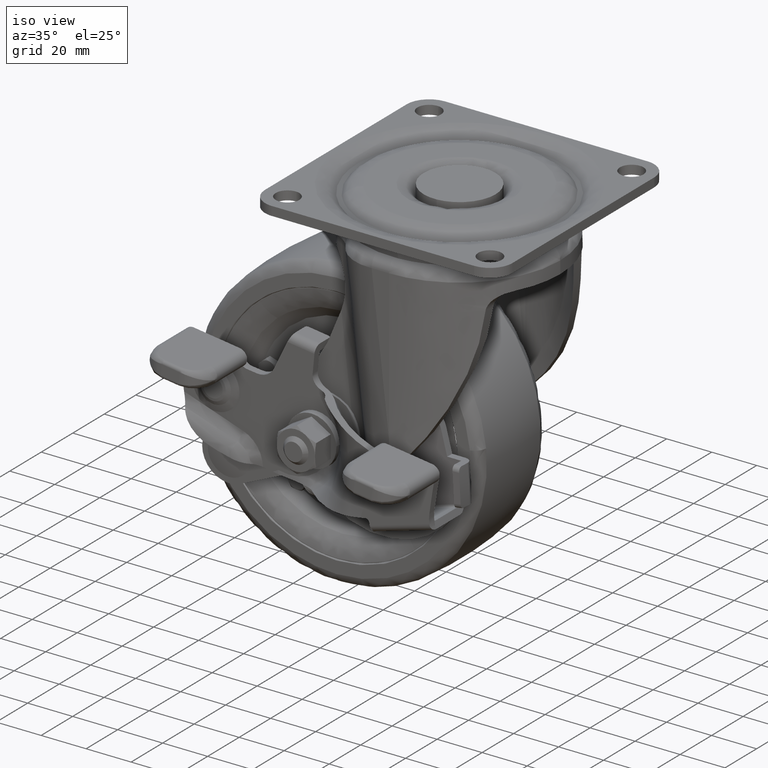
[diagram: clean part render]
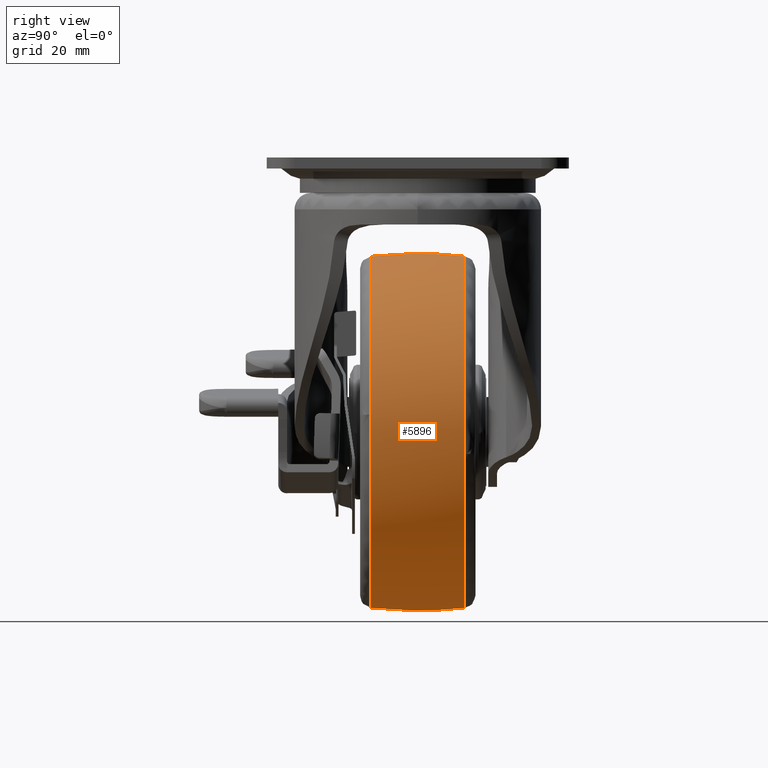
[diagram: tour spotlight — one face highlighted and labeled with its STEP entity id]
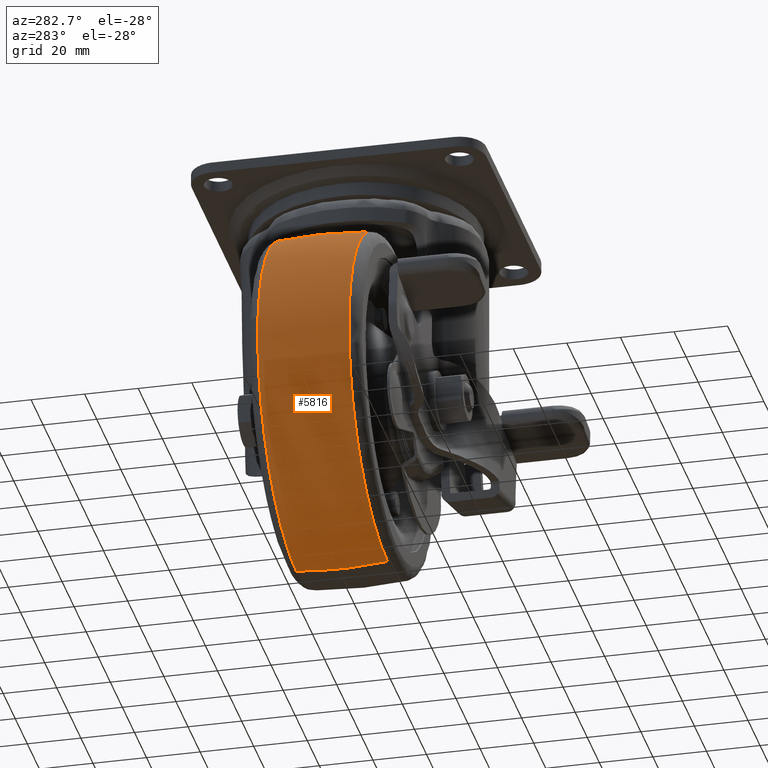
[diagram: tour spotlight — one face highlighted and labeled with its STEP entity id]
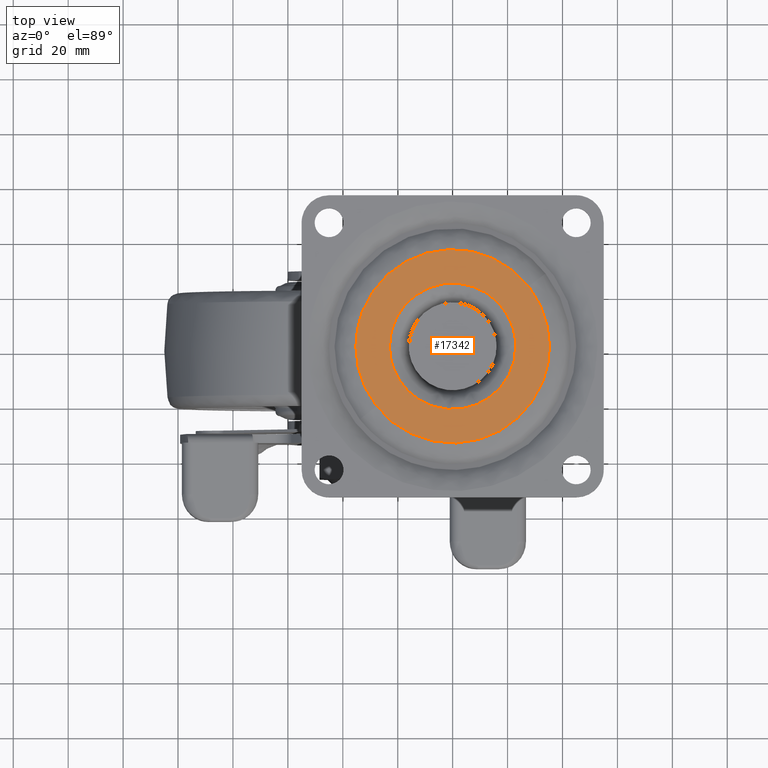
[diagram: tour spotlight — one face highlighted and labeled with its STEP entity id]
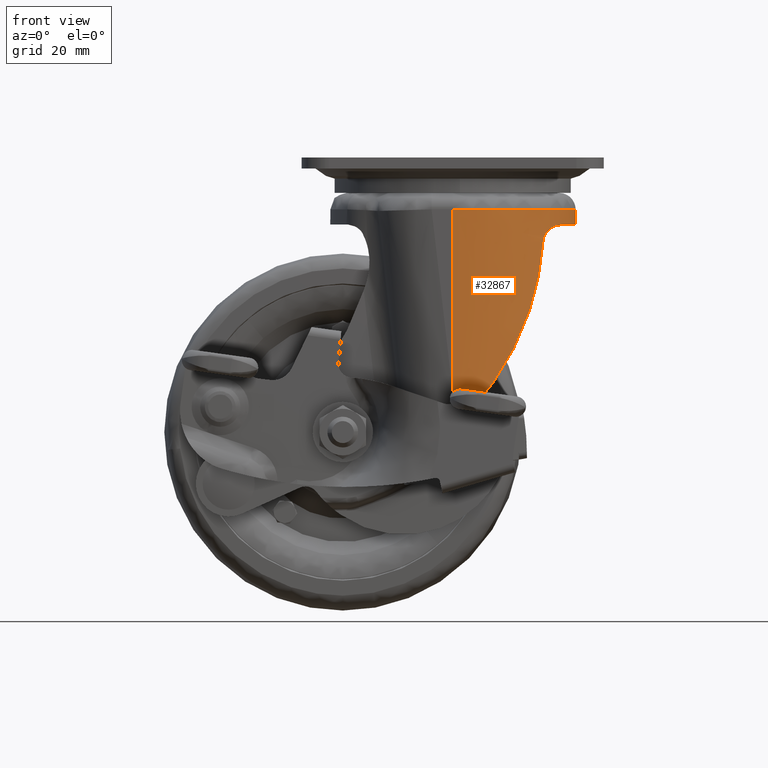
[diagram: tour spotlight — one face highlighted and labeled with its STEP entity id]
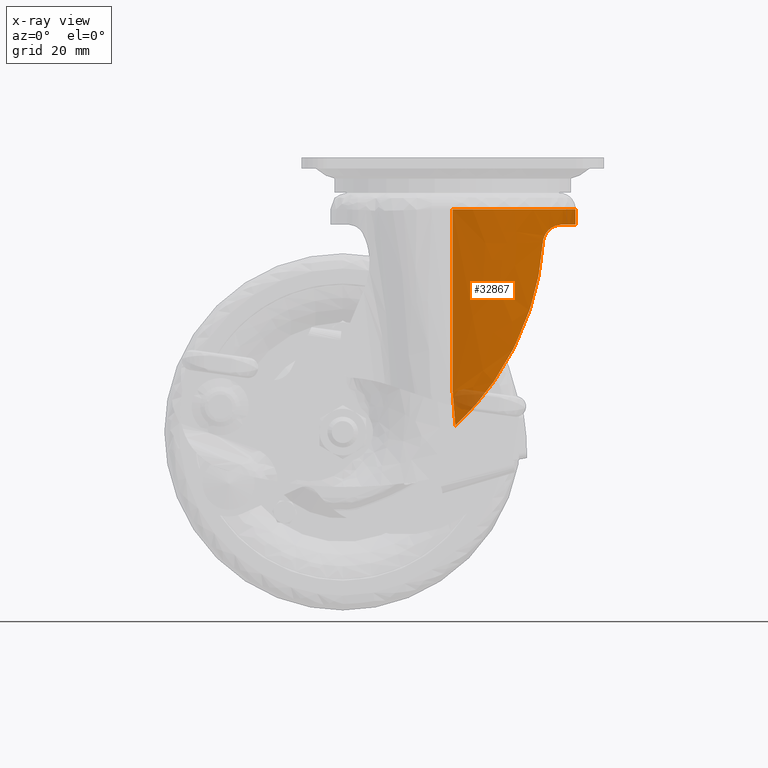
[diagram: x-ray of the same camera — body ghosted, this tour face saturated]
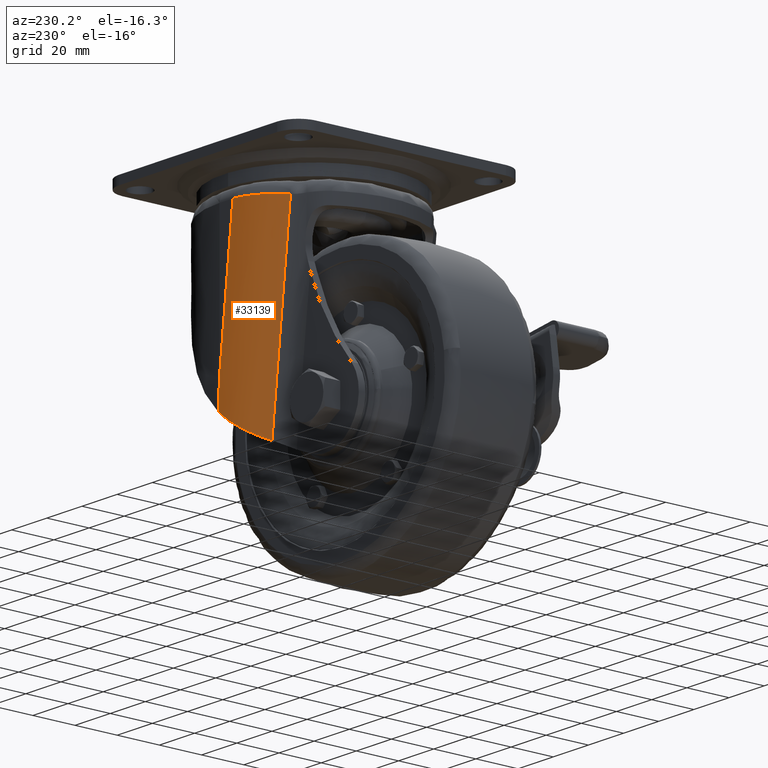
[diagram: tour spotlight — one face highlighted and labeled with its STEP entity id]
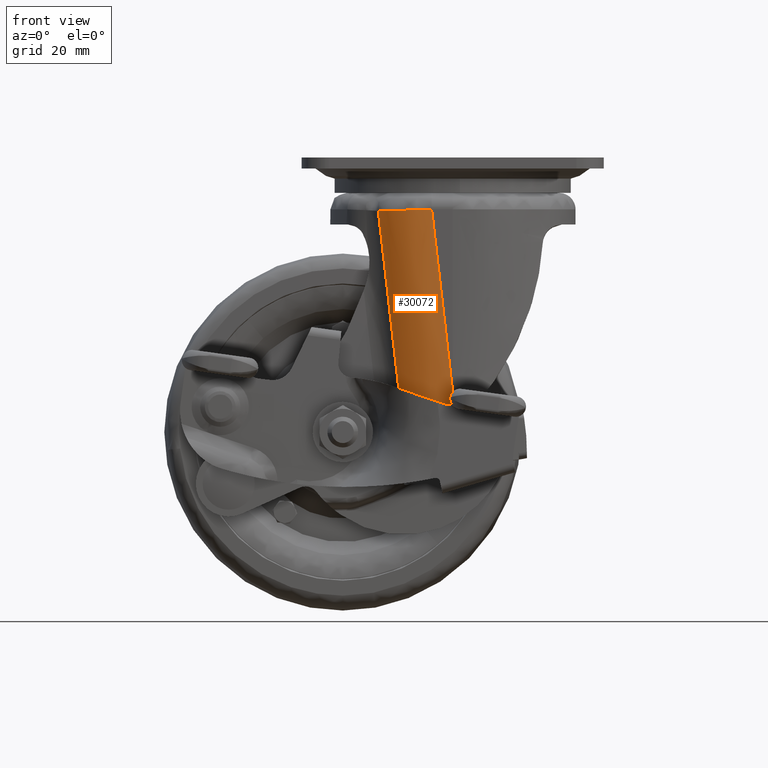
[diagram: tour spotlight — one face highlighted and labeled with its STEP entity id]
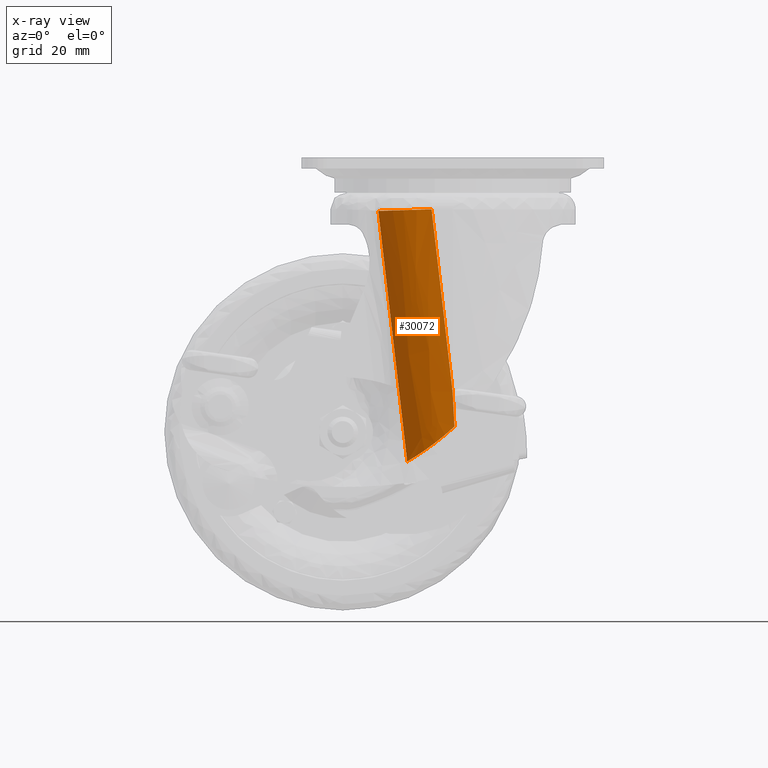
[diagram: x-ray of the same camera — body ghosted, this tour face saturated]
A machine part: a face-by-face anatomy tour. The part has 605 B-rep faces; the first image is the clean iso view, then the 6 largest visible faces are spotlighted one at a time (largest first), each with its STEP entity span.

Face 1 — right view, entity #5896. In plain terms, the highlighted face is a freeform B-spline surface patch.
Definition (entity closure, byte-faithful):
#5512=CARTESIAN_POINT('',(23.527465087303000,17.010259148118180,-108.025385178762900));
#5513=VERTEX_POINT('',#5512);
#5527=CARTESIAN_POINT('',(-40.0,17.010258881089399,-164.032382698512010));
#5528=VERTEX_POINT('',#5527);
#5529=CARTESIAN_POINT('',(-40.0,17.010258881089399,-164.032382698512010));
#5530=CARTESIAN_POINT('',(16.452136011823239,17.010259022488544,-164.032382853436560));
#5531=CARTESIAN_POINT('',(23.527465087302996,17.010259148118188,-108.025385178762850));
#5539=(BOUNDED_CURVE()B_SPLINE_CURVE(2,(#5529,#5530,#5531),.UNSPECIFIED.,.F.,.U.)B_SPLINE_CURVE_WITH_KNOTS((3,3),(0.500000000000000,0.728321258724361),.UNSPECIFIED.)CURVE()GEOMETRIC_REPRESENTATION_ITEM()RATIONAL_B_SPLINE_CURVE((1.0,0.732505006434731,0.953608361935759))REPRESENTATION_ITEM(''));
#5540=EDGE_CURVE('',#5528,#5513,#5539,.T.);
#5606=CARTESIAN_POINT('',(-40.0,17.010258845031039,-35.967617616312850));
#5607=VERTEX_POINT('',#5606);
#5621=CARTESIAN_POINT('',(23.527465087302996,17.010259148118188,-108.025385178762850));
#5622=CARTESIAN_POINT('',(24.032379330267315,17.010259139149881,-104.028576072054620));
#5623=CARTESIAN_POINT('',(24.032379253111671,17.010259129119490,-100.000000448921300));
#5624=CARTESIAN_POINT('',(24.032378026757858,17.010258969691154,-35.967617752897148));
#5625=CARTESIAN_POINT('',(-40.0,17.010258845031039,-35.967617616312850));
#5633=(BOUNDED_CURVE()B_SPLINE_CURVE(2,(#5621,#5622,#5623,#5624,#5625),.UNSPECIFIED.,.F.,.U.)B_SPLINE_CURVE_WITH_KNOTS((3,2,3),(0.728321258724361,0.750000000000000,1.0),.UNSPECIFIED.)CURVE()GEOMETRIC_REPRESENTATION_ITEM()RATIONAL_B_SPLINE_CURVE((0.953608361935759,0.974601774751817,1.0,0.707106781186548,1.0))REPRESENTATION_ITEM(''));
#5634=EDGE_CURVE('',#5513,#5607,#5633,.T.);
#5762=CARTESIAN_POINT('',(-40.0,-17.010309314472170,-35.967623376794187));
#5763=VERTEX_POINT('',#5762);
#5764=CARTESIAN_POINT('',(-40.0,-17.010309314472170,-35.967623376794187));
#5765=CARTESIAN_POINT('',(-40.0,-12.070337535563439,-35.403717911389997));
#5766=CARTESIAN_POINT('',(-40.0,-0.714881305395073,-34.676923349740150));
#5767=CARTESIAN_POINT('',(-40.0,10.658925843911589,-35.242441209896917));
#5768=CARTESIAN_POINT('',(-40.0,17.010258845031039,-35.967617616312850));
#5769=B_SPLINE_CURVE_WITH_KNOTS('',3,(#5764,#5765,#5766,#5767,#5768),.UNSPECIFIED.,.F.,.U.,(4,1,4),(-5.774311E-009,14.916162544666101,34.093928666959187),.UNSPECIFIED.);
#5770=EDGE_CURVE('',#5763,#5607,#5769,.T.);
#5774=CARTESIAN_POINT('',(-40.0,-17.010309296501681,-164.032376465786600));
#5775=VERTEX_POINT('',#5774);
#5776=CARTESIAN_POINT('',(-40.0,-17.010309296501681,-164.032376465786600));
#5777=CARTESIAN_POINT('',(-40.0,-11.893907088897580,-164.616450419356110));
#5778=CARTESIAN_POINT('',(-40.0,-0.536155815453755,-165.323078267035900));
#5779=CARTESIAN_POINT('',(-40.0,10.835356147039059,-164.737385129319990));
#5780=CARTESIAN_POINT('',(-40.0,17.010258881089399,-164.032382698512010));
#5781=B_SPLINE_CURVE_WITH_KNOTS('',3,(#5776,#5777,#5778,#5779,#5780),.UNSPECIFIED.,.F.,.U.,(4,1,4),(-5.773714E-009,15.448895728657750,34.093928685009303),.UNSPECIFIED.);
#5782=EDGE_CURVE('',#5775,#5528,#5781,.T.);
#5817=CARTESIAN_POINT('',(-41.784391992098186,-18.723057076967180,-163.826903259097040));
#5818=CARTESIAN_POINT('',(-41.817187949970787,-9.398278839405606,-164.999999999999940));
#5819=CARTESIAN_POINT('',(-41.817187949970787,2.755364E-015,-165.000000000000030));
#5820=CARTESIAN_POINT('',(-41.817187949970780,9.398253090784317,-165.000000000000060));
#5821=CARTESIAN_POINT('',(-41.784392171098517,18.723006182260594,-163.826909661858650));
#5822=CARTESIAN_POINT('',(-40.897391922160530,-18.723057076967187,-163.826903259097010));
#5823=CARTESIAN_POINT('',(-40.913885398820760,-9.398278839405606,-165.0));
#5824=CARTESIAN_POINT('',(-40.913885398820760,2.755364E-015,-165.0));
#5825=CARTESIAN_POINT('',(-40.913885398820774,9.398253090784319,-165.000000000000030));
#5826=CARTESIAN_POINT('',(-40.897392012181918,18.723006182260601,-163.826909661858590));
#5827=CARTESIAN_POINT('',(23.826903259097023,-18.723057076967191,-163.826903259096950));
#5828=CARTESIAN_POINT('',(24.999999999999979,-9.398278839405606,-164.999999999999910));
#5829=CARTESIAN_POINT('',(24.999999999999989,2.755364E-015,-164.999999999999940));
#5830=CARTESIAN_POINT('',(24.999999999999993,9.398253090784319,-164.999999999999910));
#5831=CARTESIAN_POINT('',(23.826909661858629,18.723006182260601,-163.826909661858680));
#5832=CARTESIAN_POINT('',(23.826903259097019,-18.723057076967187,-100.000000000000010));
#5833=CARTESIAN_POINT('',(24.999999999999982,-9.398278839405606,-100.0));
#5834=CARTESIAN_POINT('',(24.999999999999989,2.755364E-015,-100.0));
#5835=CARTESIAN_POINT('',(24.999999999999986,9.398253090784319,-100.0));
#5836=CARTESIAN_POINT('',(23.826909661858618,18.723006182260594,-100.0));
#5837=CARTESIAN_POINT('',(23.826903259097037,-18.723057076967191,-36.173096740903013));
#5838=CARTESIAN_POINT('',(24.999999999999979,-9.398278839405606,-35.000000000000007));
#5839=CARTESIAN_POINT('',(24.999999999999989,2.755364E-015,-35.000000000000036));
#5840=CARTESIAN_POINT('',(24.999999999999993,9.398253090784319,-35.000000000000028));
#5841=CARTESIAN_POINT('',(23.826909661858629,18.723006182260601,-36.173090338141378));
#5842=CARTESIAN_POINT('',(-40.897391922160530,-18.723057076967187,-36.173096740902956));
#5843=CARTESIAN_POINT('',(-40.913885398820760,-9.398278839405606,-35.000000000000028));
#5844=CARTESIAN_POINT('',(-40.913885398820760,2.755364E-015,-35.000000000000036));
#5845=CARTESIAN_POINT('',(-40.913885398820774,9.398253090784319,-35.000000000000057));
#5846=CARTESIAN_POINT('',(-40.897392012181918,18.723006182260601,-36.173090338141407));
#5847=CARTESIAN_POINT('',(-41.784391992098186,-18.723057076967180,-36.173096740902963));
#5848=CARTESIAN_POINT('',(-41.817187949970780,-9.398278839405606,-35.000000000000028));
#5849=CARTESIAN_POINT('',(-41.817187949970780,2.755364E-015,-35.000000000000028));
#5850=CARTESIAN_POINT('',(-41.817187949970780,9.398253090784317,-35.000000000000057));
#5851=CARTESIAN_POINT('',(-41.784392171098510,18.723006182260594,-36.173090338141407));
#5859=(BOUNDED_SURFACE()B_SPLINE_SURFACE(2,2,((#5817,#5822,#5827,#5832,#5837,#5842,#5847),(#5818,#5823,#5828,#5833,#5838,#5843,#5848),(#5819,#5824,#5829,#5834,#5839,#5844,#5849),(#5820,#5825,#5830,#5835,#5840,#5845,#5850),(#5821,#5826,#5831,#5836,#5841,#5846,#5851)),.UNSPECIFIED.,.F.,.F.,.U.)B_SPLINE_SURFACE_WITH_KNOTS((3,2,3),(3,1,2,1,3),(0.0,19.012727680360140,38.025404064846377),(0.0,2.153910524340096,109.849436741344800,217.544962958349490,219.698873482689610),.UNSPECIFIED.)GEOMETRIC_REPRESENTATION_ITEM()RATIONAL_B_SPLINE_SURFACE(((0.984973914727303,0.979270886255314,0.688416434183849,0.973567857783324,0.688416434183849,0.979270886255314,0.984973914727303),(0.996301617188072,0.990533000979504,0.696333574342527,0.984764384770936,0.696333574342527,0.990533000979504,0.996301617188072),(1.011715728752538,1.005857864376269,0.707106781186548,1.0,0.707106781186548,1.005857864376269,1.011715728752538),(0.996301658774968,0.990533042325610,0.696333603408375,0.984764425876253,0.696333603408375,0.990533042325610,0.996301658774968),(0.984973975851061,0.979270947025163,0.688416476904370,0.973567918199265,0.688416476904370,0.979270947025163,0.984973975851061)))REPRESENTATION_ITEM('')SURFACE());
#5860=ORIENTED_EDGE('',*,*,#5770,.F.);
#5861=CARTESIAN_POINT('',(23.709082661502350,-17.010310001374339,-93.573648591948569));
#5862=VERTEX_POINT('',#5861);
#5863=CARTESIAN_POINT('',(23.709082661502347,-17.010310001374339,-93.573648591948569));
#5864=CARTESIAN_POINT('',(17.898348371500237,-17.010309661964996,-35.967623381113263));
#5865=CARTESIAN_POINT('',(-40.0,-17.010309314472170,-35.967623376794187));
#5873=(BOUNDED_CURVE()B_SPLINE_CURVE(2,(#5863,#5864,#5865),.UNSPECIFIED.,.F.,.U.)B_SPLINE_CURVE_WITH_KNOTS((3,3),(0.767423313545236,1.0),.UNSPECIFIED.)CURVE()GEOMETRIC_REPRESENTATION_ITEM()RATIONAL_B_SPLINE_CURVE((0.962019889313808,0.727519462733188,1.0))REPRESENTATION_ITEM(''));
#5874=EDGE_CURVE('',#5862,#5763,#5873,.T.);
#5875=ORIENTED_EDGE('',*,*,#5874,.F.);
#5876=CARTESIAN_POINT('',(-40.0,-17.010309296501681,-164.032376465786600));
#5877=CARTESIAN_POINT('',(24.032376269650964,-17.010309610706180,-164.032376469692050));
#5878=CARTESIAN_POINT('',(24.032376226832611,-17.010309967184249,-99.999999929514857));
#5879=CARTESIAN_POINT('',(24.032376224678526,-17.010309985117757,-96.778692218000785));
#5880=CARTESIAN_POINT('',(23.709082661502347,-17.010310001374339,-93.573648591948569));
#5888=(BOUNDED_CURVE()B_SPLINE_CURVE(2,(#5876,#5877,#5878,#5879,#5880),.UNSPECIFIED.,.F.,.U.)B_SPLINE_CURVE_WITH_KNOTS((3,2,3),(0.500000000000000,0.750000000000000,0.767423313545236),.UNSPECIFIED.)CURVE()GEOMETRIC_REPRESENTATION_ITEM()RATIONAL_B_SPLINE_CURVE((1.0,0.707106781186547,1.0,0.979587318453360,0.962019889313808))REPRESENTATION_ITEM(''));
#5889=EDGE_CURVE('',#5775,#5862,#5888,.T.);
#5890=ORIENTED_EDGE('',*,*,#5889,.F.);
#5891=ORIENTED_EDGE('',*,*,#5782,.T.);
#5892=ORIENTED_EDGE('',*,*,#5540,.T.);
#5893=ORIENTED_EDGE('',*,*,#5634,.T.);
#5894=EDGE_LOOP('',(#5860,#5875,#5890,#5891,#5892,#5893));
#5895=FACE_OUTER_BOUND('',#5894,.T.);
#5896=ADVANCED_FACE('',(#5895),#5859,.T.);

Face 2 — auxiliary view, entity #5816. In plain terms, the highlighted face is a freeform B-spline surface patch.
Definition (entity closure, byte-faithful):
#5527=CARTESIAN_POINT('',(-40.0,17.010258881089399,-164.032382698512010));
#5528=VERTEX_POINT('',#5527);
#5542=CARTESIAN_POINT('',(-103.527465067730500,17.010259145850590,-91.974614823709743));
#5543=VERTEX_POINT('',#5542);
#5544=CARTESIAN_POINT('',(-103.527465067730460,17.010259145850590,-91.974614823709743));
#5545=CARTESIAN_POINT('',(-104.032379349298810,17.010259139070541,-95.971424083576764));
#5546=CARTESIAN_POINT('',(-104.032379271527400,17.010259131237930,-99.999999863577244));
#5547=CARTESIAN_POINT('',(-104.032378035386420,17.010259006742093,-164.032382560837680));
#5548=CARTESIAN_POINT('',(-40.0,17.010258881089399,-164.032382698512010));
#5556=(BOUNDED_CURVE()B_SPLINE_CURVE(2,(#5544,#5545,#5546,#5547,#5548),.UNSPECIFIED.,.F.,.U.)B_SPLINE_CURVE_WITH_KNOTS((3,2,3),(0.228321257902069,0.250000000000000,0.500000000000000),.UNSPECIFIED.)CURVE()GEOMETRIC_REPRESENTATION_ITEM()RATIONAL_B_SPLINE_CURVE((0.953608360343164,0.974601773788441,1.0,0.707106781186548,1.0))REPRESENTATION_ITEM(''));
#5557=EDGE_CURVE('',#5543,#5528,#5556,.T.);
#5606=CARTESIAN_POINT('',(-40.0,17.010258845031039,-35.967617616312850));
#5607=VERTEX_POINT('',#5606);
#5608=CARTESIAN_POINT('',(-40.0,17.010258845031039,-35.967617616312850));
#5609=CARTESIAN_POINT('',(-96.452135744054971,17.010258987556046,-35.967617460152020));
#5610=CARTESIAN_POINT('',(-103.527465067730460,17.010259145850590,-91.974614823709743));
#5618=(BOUNDED_CURVE()B_SPLINE_CURVE(2,(#5608,#5609,#5610),.UNSPECIFIED.,.F.,.U.)B_SPLINE_CURVE_WITH_KNOTS((3,3),(0.0,0.228321257902069),.UNSPECIFIED.)CURVE()GEOMETRIC_REPRESENTATION_ITEM()RATIONAL_B_SPLINE_CURVE((1.0,0.732505007398107,0.953608360343164))REPRESENTATION_ITEM(''));
#5619=EDGE_CURVE('',#5607,#5543,#5618,.T.);
#5719=CARTESIAN_POINT('',(-38.215608007901814,-18.723057076967180,-36.173096740902963));
#5720=CARTESIAN_POINT('',(-38.182812050029220,-9.398278839405606,-35.000000000000028));
#5721=CARTESIAN_POINT('',(-38.182812050029213,2.755364E-015,-35.000000000000028));
#5722=CARTESIAN_POINT('',(-38.182812050029213,9.398253090784317,-35.000000000000057));
#5723=CARTESIAN_POINT('',(-38.215607828901490,18.723006182260594,-36.173090338141407));
#5724=CARTESIAN_POINT('',(-39.102608077839470,-18.723057076967187,-36.173096740902949));
#5725=CARTESIAN_POINT('',(-39.086114601179233,-9.398278839405606,-35.000000000000028));
#5726=CARTESIAN_POINT('',(-39.086114601179233,2.755364E-015,-35.000000000000036));
#5727=CARTESIAN_POINT('',(-39.086114601179240,9.398253090784319,-35.000000000000057));
#5728=CARTESIAN_POINT('',(-39.102607987818082,18.723006182260601,-36.173090338141407));
#5729=CARTESIAN_POINT('',(-103.826903259097010,-18.723057076967191,-36.173096740903013));
#5730=CARTESIAN_POINT('',(-104.999999999999970,-9.398278839405606,-35.000000000000007));
#5731=CARTESIAN_POINT('',(-104.999999999999970,2.755364E-015,-35.000000000000036));
#5732=CARTESIAN_POINT('',(-104.999999999999990,9.398253090784319,-35.000000000000028));
#5733=CARTESIAN_POINT('',(-103.826909661858610,18.723006182260601,-36.173090338141378));
#5734=CARTESIAN_POINT('',(-103.826903259096980,-18.723057076967187,-100.000000000000010));
#5735=CARTESIAN_POINT('',(-104.999999999999970,-9.398278839405606,-100.0));
#5736=CARTESIAN_POINT('',(-105.0,2.755364E-015,-100.0));
#5737=CARTESIAN_POINT('',(-104.999999999999970,9.398253090784319,-100.0));
#5738=CARTESIAN_POINT('',(-103.826909661858650,18.723006182260594,-100.0));
#5739=CARTESIAN_POINT('',(-103.826903259097040,-18.723057076967191,-163.826903259096950));
#5740=CARTESIAN_POINT('',(-104.999999999999970,-9.398278839405606,-164.999999999999910));
#5741=CARTESIAN_POINT('',(-104.999999999999970,2.755364E-015,-164.999999999999940));
#5742=CARTESIAN_POINT('',(-104.999999999999990,9.398253090784319,-164.999999999999910));
#5743=CARTESIAN_POINT('',(-103.826909661858610,18.723006182260601,-163.826909661858680));
#5744=CARTESIAN_POINT('',(-39.102608077839470,-18.723057076967187,-163.826903259097040));
#5745=CARTESIAN_POINT('',(-39.086114601179233,-9.398278839405606,-165.0));
#5746=CARTESIAN_POINT('',(-39.086114601179233,2.755364E-015,-165.0));
#5747=CARTESIAN_POINT('',(-39.086114601179240,9.398253090784319,-165.000000000000030));
#5748=CARTESIAN_POINT('',(-39.102607987818082,18.723006182260601,-163.826909661858590));
#5749=CARTESIAN_POINT('',(-38.215608007901814,-18.723057076967180,-163.826903259097040));
#5750=CARTESIAN_POINT('',(-38.182812050029220,-9.398278839405606,-164.999999999999940));
#5751=CARTESIAN_POINT('',(-38.182812050029220,2.755364E-015,-165.000000000000030));
#5752=CARTESIAN_POINT('',(-38.182812050029220,9.398253090784317,-165.000000000000060));
#5753=CARTESIAN_POINT('',(-38.215607828901490,18.723006182260594,-163.826909661858650));
#5761=(BOUNDED_SURFACE()B_SPLINE_SURFACE(2,2,((#5719,#5724,#5729,#5734,#5739,#5744,#5749),(#5720,#5725,#5730,#5735,#5740,#5745,#5750),(#5721,#5726,#5731,#5736,#5741,#5746,#5751),(#5722,#5727,#5732,#5737,#5742,#5747,#5752),(#5723,#5728,#5733,#5738,#5743,#5748,#5753)),.UNSPECIFIED.,.F.,.F.,.U.)B_SPLINE_SURFACE_WITH_KNOTS((3,2,3),(3,1,2,1,3),(0.0,19.012727680360129,38.025404064846370),(0.0,2.153910524340096,109.849436741344800,217.544962958349490,219.698873482689610),.UNSPECIFIED.)GEOMETRIC_REPRESENTATION_ITEM()RATIONAL_B_SPLINE_SURFACE(((0.984973914727303,0.979270886255314,0.688416434183849,0.973567857783324,0.688416434183849,0.979270886255314,0.984973914727303),(0.996301617188072,0.990533000979504,0.696333574342527,0.984764384770936,0.696333574342527,0.990533000979504,0.996301617188072),(1.011715728752538,1.005857864376269,0.707106781186548,1.0,0.707106781186548,1.005857864376269,1.011715728752538),(0.996301658774968,0.990533042325610,0.696333603408375,0.984764425876253,0.696333603408375,0.990533042325610,0.996301658774968),(0.984973975851061,0.979270947025163,0.688416476904370,0.973567918199265,0.688416476904370,0.979270947025163,0.984973975851061)))REPRESENTATION_ITEM('')SURFACE());
#5762=CARTESIAN_POINT('',(-40.0,-17.010309314472170,-35.967623376794187));
#5763=VERTEX_POINT('',#5762);
#5764=CARTESIAN_POINT('',(-40.0,-17.010309314472170,-35.967623376794187));
#5765=CARTESIAN_POINT('',(-40.0,-12.070337535563439,-35.403717911389997));
#5766=CARTESIAN_POINT('',(-40.0,-0.714881305395073,-34.676923349740150));
#5767=CARTESIAN_POINT('',(-40.0,10.658925843911589,-35.242441209896917));
#5768=CARTESIAN_POINT('',(-40.0,17.010258845031039,-35.967617616312850));
#5769=B_SPLINE_CURVE_WITH_KNOTS('',3,(#5764,#5765,#5766,#5767,#5768),.UNSPECIFIED.,.F.,.U.,(4,1,4),(-5.774311E-009,14.916162544666101,34.093928666959187),.UNSPECIFIED.);
#5770=EDGE_CURVE('',#5763,#5607,#5769,.T.);
#5771=ORIENTED_EDGE('',*,*,#5770,.T.);
#5772=ORIENTED_EDGE('',*,*,#5619,.T.);
#5773=ORIENTED_EDGE('',*,*,#5557,.T.);
#5774=CARTESIAN_POINT('',(-40.0,-17.010309296501681,-164.032376465786600));
#5775=VERTEX_POINT('',#5774);
#5776=CARTESIAN_POINT('',(-40.0,-17.010309296501681,-164.032376465786600));
#5777=CARTESIAN_POINT('',(-40.0,-11.893907088897580,-164.616450419356110));
#5778=CARTESIAN_POINT('',(-40.0,-0.536155815453755,-165.323078267035900));
#5779=CARTESIAN_POINT('',(-40.0,10.835356147039059,-164.737385129319990));
#5780=CARTESIAN_POINT('',(-40.0,17.010258881089399,-164.032382698512010));
#5781=B_SPLINE_CURVE_WITH_KNOTS('',3,(#5776,#5777,#5778,#5779,#5780),.UNSPECIFIED.,.F.,.U.,(4,1,4),(-5.773714E-009,15.448895728657750,34.093928685009303),.UNSPECIFIED.);
#5782=EDGE_CURVE('',#5775,#5528,#5781,.T.);
#5783=ORIENTED_EDGE('',*,*,#5782,.F.);
#5784=CARTESIAN_POINT('',(-103.709082653626990,-17.010310000552369,-106.426351407325800));
#5785=VERTEX_POINT('',#5784);
#5786=CARTESIAN_POINT('',(-103.709082653627010,-17.010310000552376,-106.426351407325730));
#5787=CARTESIAN_POINT('',(-97.898348233024279,-17.010309644485286,-164.032376461863490));
#5788=CARTESIAN_POINT('',(-40.0,-17.010309296501681,-164.032376465786600));
#5796=(BOUNDED_CURVE()B_SPLINE_CURVE(2,(#5786,#5787,#5788),.UNSPECIFIED.,.F.,.U.)B_SPLINE_CURVE_WITH_KNOTS((3,3),(0.267423313961394,0.500000000000000),.UNSPECIFIED.)CURVE()GEOMETRIC_REPRESENTATION_ITEM()RATIONAL_B_SPLINE_CURVE((0.962019888474608,0.727519463220747,1.0))REPRESENTATION_ITEM(''));
#5797=EDGE_CURVE('',#5785,#5775,#5796,.T.);
#5798=ORIENTED_EDGE('',*,*,#5797,.F.);
#5799=CARTESIAN_POINT('',(-40.0,-17.010309314472170,-35.967623376794187));
#5800=CARTESIAN_POINT('',(-104.032376273200190,-17.010309629120442,-35.967623373246845));
#5801=CARTESIAN_POINT('',(-104.032376234307090,-17.010309968118790,-99.999999913819920));
#5802=CARTESIAN_POINT('',(-104.032376232350440,-17.010309985172952,-103.221307703898600));
#5803=CARTESIAN_POINT('',(-103.709082653627010,-17.010310000552376,-106.426351407325730));
#5811=(BOUNDED_CURVE()B_SPLINE_CURVE(2,(#5799,#5800,#5801,#5802,#5803),.UNSPECIFIED.,.F.,.U.)B_SPLINE_CURVE_WITH_KNOTS((3,2,3),(0.0,0.250000000000000,0.267423313961394),.UNSPECIFIED.)CURVE()GEOMETRIC_REPRESENTATION_ITEM()RATIONAL_B_SPLINE_CURVE((1.0,0.707106781186547,1.0,0.979587317965800,0.962019888474608))REPRESENTATION_ITEM(''));
#5812=EDGE_CURVE('',#5763,#5785,#5811,.T.);
#5813=ORIENTED_EDGE('',*,*,#5812,.F.);
#5814=EDGE_LOOP('',(#5771,#5772,#5773,#5783,#5798,#5813));
#5815=FACE_OUTER_BOUND('',#5814,.T.);
#5816=ADVANCED_FACE('',(#5815),#5761,.T.);

Face 3 — top view, entity #17342. In plain terms, the highlighted face is a freeform B-spline surface patch.
Definition (entity closure, byte-faithful):
#16995=CARTESIAN_POINT('',(-22.998184016500439,-0.289018917498542,-1.382528E-015));
#16996=VERTEX_POINT('',#16995);
#17010=CARTESIAN_POINT('',(23.0,0.0,0.0));
#17011=VERTEX_POINT('',#17010);
#17012=CARTESIAN_POINT('',(23.0,0.0,0.0));
#17013=CARTESIAN_POINT('',(23.000638566380960,-1.967924773986754,-3.524374E-019));
#17014=CARTESIAN_POINT('',(22.624788001181411,-4.872534890180648,-1.219713E-017));
#17015=CARTESIAN_POINT('',(21.407209950871469,-8.573551358259650,-4.949030E-017));
#17016=CARTESIAN_POINT('',(20.058666285238679,-11.415525774172471,-9.055741E-017));
#17017=CARTESIAN_POINT('',(18.289254235171210,-14.077191713564730,-1.442397E-016));
#17018=CARTESIAN_POINT('',(16.002804800780709,-16.630492858864130,-2.134410E-016));
#17019=CARTESIAN_POINT('',(13.443724429272979,-18.772383069160821,-2.907585E-016));
#17020=CARTESIAN_POINT('',(10.348581148897949,-20.644879258776388,-3.841365E-016));
#17021=CARTESIAN_POINT('',(6.823915094544653,-22.086602495484051,-4.903425E-016));
#17022=CARTESIAN_POINT('',(3.099796731707090,-22.896195764175971,-6.024236E-016));
#17023=CARTESIAN_POINT('',(-0.325615650022425,-23.064265448657750,-7.054059E-016));
#17024=CARTESIAN_POINT('',(-3.319101780898502,-22.817234889907471,-7.953284E-016));
#17025=CARTESIAN_POINT('',(-6.491191770995231,-22.159253758885381,-8.905412E-016));
#17026=CARTESIAN_POINT('',(-10.060619068682570,-20.826623775908160,-9.975685E-016));
#17027=CARTESIAN_POINT('',(-13.732660087976740,-18.622162888486891,-1.107515E-015));
#17028=CARTESIAN_POINT('',(-16.502867112879429,-16.142209971865249,-1.190305E-015));
#17029=CARTESIAN_POINT('',(-18.543362913657649,-13.689654872997000,-1.251169E-015));
#17030=CARTESIAN_POINT('',(-20.063320222726471,-11.374463550880110,-1.296414E-015));
#17031=CARTESIAN_POINT('',(-21.274843750926181,-8.882744440916845,-1.332356E-015));
#17032=CARTESIAN_POINT('',(-22.549526747141009,-5.203110026916415,-1.369972E-015));
#17033=CARTESIAN_POINT('',(-22.972992557513809,-2.350505415158302,-1.382160E-015));
#17034=CARTESIAN_POINT('',(-22.998184016500439,-0.289018917498542,-1.382528E-015));
#17035=B_SPLINE_CURVE_WITH_KNOTS('',3,(#17012,#17013,#17014,#17015,#17016,#17017,#17018,#17019,#17020,#17021,#17022,#17023,#17024,#17025,#17026,#17027,#17028,#17029,#17030,#17031,#17032,#17033,#17034),.UNSPECIFIED.,.F.,.U.,(4,1,1,1,1,1,1,1,1,1,1,1,1,1,1,1,1,1,1,1,4),(0.000000332080958,5.903549322201386,8.714829765694326,11.666594573149711,15.321235512651191,18.273059561658378,21.927692213308429,25.301177556563250,29.096347747137401,33.313279413180616,36.686558095819507,39.357322107155113,42.309108421340532,46.385390926987810,50.742857786060632,55.100290357999867,57.489844961898292,60.301105640038379,63.393447090906051,65.783069751857454,71.967716503074755),.UNSPECIFIED.);
#17036=EDGE_CURVE('',#17011,#16996,#17035,.T.);
#17038=CARTESIAN_POINT('',(22.998184016500449,0.289018917498546,-1.382528E-015));
#17039=VERTEX_POINT('',#17038);
#17040=CARTESIAN_POINT('',(22.998184016500442,0.289018917498546,-1.382528E-015));
#17041=CARTESIAN_POINT('',(22.999999999907491,0.144515163904194,-6.912640E-016));
#17042=CARTESIAN_POINT('',(23.0,0.0,0.0));
#17050=(BOUNDED_CURVE()B_SPLINE_CURVE(2,(#17040,#17041,#17042),.UNSPECIFIED.,.F.,.U.)B_SPLINE_CURVE_WITH_KNOTS((3,3),(0.497784295920323,0.500000000000000),.UNSPECIFIED.)CURVE()GEOMETRIC_REPRESENTATION_ITEM()RATIONAL_B_SPLINE_CURVE((0.994854295640778,0.997404141200661,1.0))REPRESENTATION_ITEM(''));
#17051=EDGE_CURVE('',#17039,#17011,#17050,.T.);
#17101=CARTESIAN_POINT('',(-23.0,0.0,0.0));
#17102=VERTEX_POINT('',#17101);
#17103=CARTESIAN_POINT('',(-23.0,0.0,0.0));
#17104=CARTESIAN_POINT('',(-23.000047645879459,1.124462855668133,-2.109153E-019));
#17105=CARTESIAN_POINT('',(-22.834758463013092,3.373405160819387,-5.603373E-018));
#17106=CARTESIAN_POINT('',(-22.024889941717930,6.995386933585599,-3.062792E-017));
#17107=CARTESIAN_POINT('',(-20.422231833016319,10.916346781979181,-7.953619E-017));
#17108=CARTESIAN_POINT('',(-17.984892839323361,14.558478446746181,-1.534781E-016));
#17109=CARTESIAN_POINT('',(-15.143505736922320,17.434956235334511,-2.394191E-016));
#17110=CARTESIAN_POINT('',(-12.308418710396809,19.527176745854280,-3.250226E-016));
#17111=CARTESIAN_POINT('',(-9.073585857703844,21.248838465800748,-4.225705E-016));
#17112=CARTESIAN_POINT('',(-5.505438427264545,22.447512217914991,-5.300374E-016));
#17113=CARTESIAN_POINT('',(-2.114340184879495,22.970128607579898,-6.320554E-016));
#17114=CARTESIAN_POINT('',(0.746923628884220,23.031744322619339,-7.180622E-016));
#17115=CARTESIAN_POINT('',(3.972945503213688,22.755902417287881,-8.149681E-016));
#17116=CARTESIAN_POINT('',(7.263901091224549,21.935539382888269,-9.137227E-016));
#17117=CARTESIAN_POINT('',(10.536719584671649,20.515584165327290,-1.011819E-015));
#17118=CARTESIAN_POINT('',(13.602385837160631,18.688164257867079,-1.103612E-015));
#17119=CARTESIAN_POINT('',(16.606452168840679,16.112565906039801,-1.193413E-015));
#17120=CARTESIAN_POINT('',(18.891550619975170,13.243284167431151,-1.261550E-015));
#17121=CARTESIAN_POINT('',(20.598661610177700,10.383393629868930,-1.312317E-015));
#17122=CARTESIAN_POINT('',(21.919339778419740,7.317808710064428,-1.351431E-015));
#17123=CARTESIAN_POINT('',(22.786434239984839,3.753783234580229,-1.376818E-015));
#17124=CARTESIAN_POINT('',(22.984680271264789,1.366566606247042,-1.382326E-015));
#17125=CARTESIAN_POINT('',(22.998184016500449,0.289018917498546,-1.382528E-015));
#17126=B_SPLINE_CURVE_WITH_KNOTS('',3,(#17103,#17104,#17105,#17106,#17107,#17108,#17109,#17110,#17111,#17112,#17113,#17114,#17115,#17116,#17117,#17118,#17119,#17120,#17121,#17122,#17123,#17124,#17125),.UNSPECIFIED.,.F.,.U.,(4,1,1,1,1,1,1,1,1,1,1,1,1,1,1,1,1,1,1,1,4),(0.000000332108073,3.373388881897839,6.746885200422284,11.104354821372930,16.024062083832732,19.819253114694799,23.192763995414161,26.566238672850599,30.783079627960099,34.437787123798742,36.827198797746703,39.357322107162886,44.136374624282787,46.947632334623833,50.040021895320763,54.819165477234073,58.754917829352323,61.003940307120949,64.799131027487647,68.734816354903927,71.967716503074698),.UNSPECIFIED.);
#17127=EDGE_CURVE('',#17102,#17039,#17126,.T.);
#17129=CARTESIAN_POINT('',(-22.998184016500442,-0.289018917498542,-1.382528E-015));
#17130=CARTESIAN_POINT('',(-22.999999999907491,-0.144515163904192,-6.912640E-016));
#17131=CARTESIAN_POINT('',(-23.0,0.0,0.0));
#17139=(BOUNDED_CURVE()B_SPLINE_CURVE(2,(#17129,#17130,#17131),.UNSPECIFIED.,.F.,.U.)B_SPLINE_CURVE_WITH_KNOTS((3,3),(0.997784295920323,1.0),.UNSPECIFIED.)CURVE()GEOMETRIC_REPRESENTATION_ITEM()RATIONAL_B_SPLINE_CURVE((0.994854295640778,0.997404141200661,1.0))REPRESENTATION_ITEM(''));
#17140=EDGE_CURVE('',#16996,#17102,#17139,.T.);
#17178=CARTESIAN_POINT('',(27.704124893658371,21.769695684715369,-1.929744E-015));
#17179=VERTEX_POINT('',#17178);
#17193=CARTESIAN_POINT('',(35.234048673858453,0.0,0.0));
#17194=VERTEX_POINT('',#17193);
#17195=CARTESIAN_POINT('',(35.234048673858453,0.0,0.0));
#17196=CARTESIAN_POINT('',(35.234048675960139,12.187111158958306,-9.648719E-016));
#17197=CARTESIAN_POINT('',(27.704124893658371,21.769695684715369,-1.929744E-015));
#17205=(BOUNDED_CURVE()B_SPLINE_CURVE(2,(#17195,#17196,#17197),.UNSPECIFIED.,.F.,.U.)B_SPLINE_CURVE_WITH_KNOTS((3,3),(0.500000000000000,0.606965446781305),.UNSPECIFIED.)CURVE()GEOMETRIC_REPRESENTATION_ITEM()RATIONAL_B_SPLINE_CURVE((1.0,0.874682183961617,0.856601777380859))REPRESENTATION_ITEM(''));
#17206=EDGE_CURVE('',#17194,#17179,#17205,.T.);
#17208=CARTESIAN_POINT('',(-27.704124893658371,-21.769695684715369,-1.688526E-015));
#17209=VERTEX_POINT('',#17208);
#17210=CARTESIAN_POINT('',(-27.704124893658371,-21.769695684715369,-1.688526E-015));
#17211=CARTESIAN_POINT('',(-26.125573203954531,-23.779310433180939,-1.667357E-015));
#17212=CARTESIAN_POINT('',(-22.808169725373681,-27.166587967005871,-1.615941E-015));
#17213=CARTESIAN_POINT('',(-17.095054240523961,-31.036359877129851,-1.511119E-015));
#17214=CARTESIAN_POINT('',(-11.711766152270380,-33.386070654051153,-1.401601E-015));
#17215=CARTESIAN_POINT('',(-6.259239421036229,-34.804222141384457,-1.282704E-015));
#17216=CARTESIAN_POINT('',(-1.557109233428820,-35.309167454450332,-1.174219E-015));
#17217=CARTESIAN_POINT('',(3.331469631771344,-35.170292639933528,-1.055930E-015));
#17218=CARTESIAN_POINT('',(7.325970750257757,-34.549761193605633,-9.550721E-016));
#17219=CARTESIAN_POINT('',(11.541588461495870,-33.371376597908302,-8.442927E-016));
#17220=CARTESIAN_POINT('',(15.917860836297670,-31.592101390730221,-7.246836E-016));
#17221=CARTESIAN_POINT('',(20.315674808809170,-28.950446233827829,-5.974109E-016));
#17222=CARTESIAN_POINT('',(23.867750741724230,-26.013720390575099,-4.879578E-016));
#17223=CARTESIAN_POINT('',(26.839468452407470,-22.956493456436469,-3.914123E-016));
#17224=CARTESIAN_POINT('',(29.260130224106788,-19.790281483168229,-3.071677E-016));
#17225=CARTESIAN_POINT('',(31.471349716677970,-16.011457429156039,-2.228642E-016));
#17226=CARTESIAN_POINT('',(33.241135778084207,-12.003570660983360,-1.472397E-016));
#17227=CARTESIAN_POINT('',(34.801333825017608,-6.587102403095459,-6.496289E-017));
#17228=CARTESIAN_POINT('',(35.234413406895769,-2.441831053047989,-2.022933E-017));
#17229=CARTESIAN_POINT('',(35.234048673858453,0.0,0.0));
#17230=B_SPLINE_CURVE_WITH_KNOTS('',3,(#17210,#17211,#17212,#17213,#17214,#17215,#17216,#17217,#17218,#17219,#17220,#17221,#17222,#17223,#17224,#17225,#17226,#17227,#17228,#17229),.UNSPECIFIED.,.F.,.U.,(4,1,1,1,1,1,1,1,1,1,1,1,1,1,1,1,1,4),(0.000000215446050,7.666243959637257,14.139960021094980,20.613711834016410,25.213437051362899,31.005676941979811,34.753482422864337,39.864283113778320,43.101138386316173,47.871268108651442,54.004279040376652,58.433678382168267,61.670536118977367,66.781384366144863,70.358955119044936,74.788324305431928,79.899200217048246,87.224615402498728),.UNSPECIFIED.);
#17231=EDGE_CURVE('',#17209,#17194,#17230,.T.);
#17280=CARTESIAN_POINT('',(-35.234048673858453,0.0,0.0));
#17281=VERTEX_POINT('',#17280);
#17282=CARTESIAN_POINT('',(-35.234048673858453,0.0,0.0));
#17283=CARTESIAN_POINT('',(-35.234048675960139,-12.187111158958306,-8.442630E-016));
#17284=CARTESIAN_POINT('',(-27.704124893658374,-21.769695684715362,-1.688526E-015));
#17292=(BOUNDED_CURVE()B_SPLINE_CURVE(2,(#17282,#17283,#17284),.UNSPECIFIED.,.F.,.U.)B_SPLINE_CURVE_WITH_KNOTS((3,3),(0.0,0.106965446781306),.UNSPECIFIED.)CURVE()GEOMETRIC_REPRESENTATION_ITEM()RATIONAL_B_SPLINE_CURVE((1.0,0.874682183961617,0.856601777380859))REPRESENTATION_ITEM(''));
#17293=EDGE_CURVE('',#17281,#17209,#17292,.T.);
#17295=CARTESIAN_POINT('',(27.704124893658371,21.769695684715369,-1.929744E-015));
#17296=CARTESIAN_POINT('',(26.581434988670420,23.198580343316301,-1.912534E-015));
#17297=CARTESIAN_POINT('',(24.037241199091369,25.965984911822321,-1.869075E-015));
#17298=CARTESIAN_POINT('',(20.324084190053242,28.894834573088790,-1.795134E-015));
#17299=CARTESIAN_POINT('',(16.677944601108830,31.102922951709800,-1.716201E-015));
#17300=CARTESIAN_POINT('',(12.571484904500080,33.063911048067261,-1.622322E-015));
#17301=CARTESIAN_POINT('',(7.984551436724628,34.448297728023050,-1.509823E-015));
#17302=CARTESIAN_POINT('',(3.035623720539320,35.186389751931827,-1.381290E-015));
#17303=CARTESIAN_POINT('',(-0.776087089317752,35.299359301635981,-1.277977E-015));
#17304=CARTESIAN_POINT('',(-5.194893850346841,34.938103090696799,-1.153548E-015));
#17305=CARTESIAN_POINT('',(-9.044644132571937,34.147870799705167,-1.040639E-015));
#17306=CARTESIAN_POINT('',(-13.191639107967640,32.746984021167343,-9.138056E-016));
#17307=CARTESIAN_POINT('',(-16.701187900173199,31.118088303214030,-8.022688E-016));
#17308=CARTESIAN_POINT('',(-20.911917602438120,28.519245195996010,-6.623431E-016));
#17309=CARTESIAN_POINT('',(-24.617813406755442,25.394795440861330,-5.312634E-016));
#17310=CARTESIAN_POINT('',(-27.582211699643441,22.017480355104031,-4.180942E-016));
#17311=CARTESIAN_POINT('',(-29.865021627565401,18.828774466525289,-3.253766E-016));
#17312=CARTESIAN_POINT('',(-32.153855203519171,14.761320448569920,-2.241704E-016));
#17313=CARTESIAN_POINT('',(-33.919445840539552,10.004118770551450,-1.307597E-016));
#17314=CARTESIAN_POINT('',(-34.999448252586923,4.883583509989194,-5.268214E-017));
#17315=CARTESIAN_POINT('',(-35.234151330828396,1.760361053713257,-1.667147E-017));
#17316=CARTESIAN_POINT('',(-35.234048673858453,0.0,0.0));
#17317=B_SPLINE_CURVE_WITH_KNOTS('',3,(#17295,#17296,#17297,#17298,#17299,#17300,#17301,#17302,#17303,#17304,#17305,#17306,#17307,#17308,#17309,#17310,#17311,#17312,#17313,#17314,#17315,#17316),.UNSPECIFIED.,.F.,.U.,(4,1,1,1,1,1,1,1,1,1,1,1,1,1,1,1,1,1,1,4),(0.000000215857128,5.451543439326684,11.243827057347870,14.139960021443470,18.228627538068380,24.872735998026059,28.450270871721749,33.220199147692888,36.286781664276447,41.738279044725303,44.975126023346867,49.404553286654249,53.322840605287993,59.796565551878253,63.885238870002503,66.781384366242392,71.551506210930327,77.854826227056421,81.943540518270865,87.224615402497804),.UNSPECIFIED.);
#17318=EDGE_CURVE('',#17179,#17281,#17317,.T.);
#17325=CARTESIAN_POINT('',(-38.753929999796050,38.753763922572212,0.0));
#17326=CARTESIAN_POINT('',(38.753931889897707,38.753763922572212,0.0));
#17327=CARTESIAN_POINT('',(-38.753929999796050,-38.753762033858393,0.0));
#17328=CARTESIAN_POINT('',(38.753931889897707,-38.753762033858393,0.0));
#17329=B_SPLINE_SURFACE_WITH_KNOTS('',1,1,((#17325,#17327),(#17326,#17328)),.UNSPECIFIED.,.F.,.F.,.U.,(2,2),(2,2),(0.0,77.507861889693771),(0.0,77.507525956430598),.UNSPECIFIED.);
#17330=ORIENTED_EDGE('',*,*,#17293,.T.);
#17331=ORIENTED_EDGE('',*,*,#17231,.T.);
#17332=ORIENTED_EDGE('',*,*,#17206,.T.);
#17333=ORIENTED_EDGE('',*,*,#17318,.T.);
#17334=EDGE_LOOP('',(#17330,#17331,#17332,#17333));
#17335=FACE_OUTER_BOUND('',#17334,.T.);
#17336=ORIENTED_EDGE('',*,*,#17036,.T.);
#17337=ORIENTED_EDGE('',*,*,#17140,.T.);
#17338=ORIENTED_EDGE('',*,*,#17127,.T.);
#17339=ORIENTED_EDGE('',*,*,#17051,.T.);
#17340=EDGE_LOOP('',(#17336,#17337,#17338,#17339));
#17341=FACE_BOUND('',#17340,.T.);
#17342=ADVANCED_FACE('',(#17335,#17341),#17329,.F.);

Face 4 — front view, entity #32867. An x-ray twin of the same camera follows (body ghosted, this face saturated) — the face is partly hidden behind the body. In plain terms, the highlighted face is a freeform B-spline surface patch.
Definition (entity closure, byte-faithful):
#28812=CARTESIAN_POINT('',(0.0,-44.866289000000002,-18.899999999999999));
#28813=VERTEX_POINT('',#28812);
#29922=CARTESIAN_POINT('',(-1.387779E-014,-44.866289000000002,-85.466906948423002));
#29923=VERTEX_POINT('',#29922);
#29924=CARTESIAN_POINT('',(-1.387779E-014,-44.866289000000002,-85.466906948423002));
#29925=CARTESIAN_POINT('',(0.0,-44.866289000000002,-18.899999999999999));
#29926=QUASI_UNIFORM_CURVE('',1,(#29924,#29925),.UNSPECIFIED.,.F.,.U.);
#29927=EDGE_CURVE('',#29923,#28813,#29926,.T.);
#30196=CARTESIAN_POINT('',(32.840996432676263,-30.514174671686899,-30.927961300702901));
#30197=VERTEX_POINT('',#30196);
#30198=CARTESIAN_POINT('',(0.983958270327116,-44.855470106970003,-97.711542046221595));
#30199=VERTEX_POINT('',#30198);
#30200=CARTESIAN_POINT('',(32.840996432676263,-30.514174671686899,-30.927961300702901));
#30201=CARTESIAN_POINT('',(32.731630099860837,-30.632330894282081,-32.546094941064631));
#30202=CARTESIAN_POINT('',(32.583944755285472,-30.790717479955401,-34.148724662803332));
#30203=CARTESIAN_POINT('',(32.215005379383093,-31.177960667727639,-37.325495495106431));
#30204=CARTESIAN_POINT('',(31.993748986579259,-31.406789397317429,-38.899641378470413));
#30205=CARTESIAN_POINT('',(31.479743140969362,-31.923853526529800,-42.021961037635847));
#30206=CARTESIAN_POINT('',(31.186991467957242,-32.212068984576547,-43.570138118607503));
#30207=CARTESIAN_POINT('',(30.531151511851469,-32.836562791659382,-46.642899830400637));
#30208=CARTESIAN_POINT('',(30.168061559413310,-33.172829663806667,-48.167486282591760));
#30209=CARTESIAN_POINT('',(29.371842230880731,-33.882273405533120,-51.195232966326117));
#30210=CARTESIAN_POINT('',(28.938712087202831,-34.255446139718060,-52.698393819863433));
#30211=CARTESIAN_POINT('',(28.236094140373918,-34.834837926547017,-54.938503494586953));
#30212=CARTESIAN_POINT('',(27.993061357243821,-35.031244232121779,-55.682766129840083));
#30213=CARTESIAN_POINT('',(27.489200453036879,-35.429309848749867,-57.166626006647171));
#30214=CARTESIAN_POINT('',(27.228122795627090,-35.631150784907263,-57.906866906281500));
#30215=CARTESIAN_POINT('',(26.421143775048328,-36.240241938700727,-60.112275977825377));
#30216=CARTESIAN_POINT('',(25.850857053407641,-36.651589258078467,-61.564310592639139));
#30217=CARTESIAN_POINT('',(24.645915459018759,-37.475007213163657,-64.434776762133907));
#30218=CARTESIAN_POINT('',(24.011259198952249,-37.887089062461428,-65.853204463774858));
#30219=CARTESIAN_POINT('',(22.677053516709631,-38.702881872110282,-68.658725358907759));
#30220=CARTESIAN_POINT('',(21.977504427053599,-39.106604614757117,-70.045815432892368));
#30221=CARTESIAN_POINT('',(20.512251665161958,-39.896974567302557,-72.790438651954332));
#30222=CARTESIAN_POINT('',(19.746550068240872,-40.283634522892449,-74.147969312690009));
#30223=CARTESIAN_POINT('',(18.146958658199338,-41.031197986952129,-76.834843949005005));
#30224=CARTESIAN_POINT('',(17.313072941648080,-41.392116170936283,-78.164185949876256));
#30225=CARTESIAN_POINT('',(16.008930425524440,-41.907378031786152,-80.137830900945744));
#30226=CARTESIAN_POINT('',(15.565323467464230,-42.074775066961450,-80.792315392128756));
#30227=CARTESIAN_POINT('',(14.886231415557461,-42.318426992784453,-81.769022469503781));
#30228=CARTESIAN_POINT('',(14.657485590724010,-42.398437439893463,-82.093896067101610));
#30229=CARTESIAN_POINT('',(14.195833179177390,-42.555660824809500,-82.741330960112165));
#30230=CARTESIAN_POINT('',(13.963123596707600,-42.632808526186679,-83.063619772614160));
#30231=CARTESIAN_POINT('',(12.790142660555251,-43.010890080827330,-84.667958762606901));
#30232=CARTESIAN_POINT('',(11.821594995001030,-43.288879795848210,-85.928709586177362));
#30233=CARTESIAN_POINT('',(9.823401096722959,-43.786914083052018,-88.405486636485804));
#30234=CARTESIAN_POINT('',(8.793756992630948,-44.006976581236110,-89.621511953282095));
#30235=CARTESIAN_POINT('',(6.671987161986849,-44.379221637924047,-92.009163520049910));
#30236=CARTESIAN_POINT('',(5.579865153196719,-44.531427703655588,-93.180789391207938));
#30237=CARTESIAN_POINT('',(3.331058320823689,-44.756444596235283,-95.479599050963813));
#30238=CARTESIAN_POINT('',(2.174379509276349,-44.829288920943434,-96.606782927658045));
#30239=CARTESIAN_POINT('',(0.983958270327203,-44.855470106969982,-97.711542046221666));
#30240=B_SPLINE_CURVE_WITH_KNOTS('',3,(#30200,#30201,#30202,#30203,#30204,#30205,#30206,#30207,#30208,#30209,#30210,#30211,#30212,#30213,#30214,#30215,#30216,#30217,#30218,#30219,#30220,#30221,#30222,#30223,#30224,#30225,#30226,#30227,#30228,#30229,#30230,#30231,#30232,#30233,#30234,#30235,#30236,#30237,#30238,#30239),.UNSPECIFIED.,.F.,.U.,(4,2,2,2,2,2,2,2,2,2,2,2,2,2,2,2,2,2,2,4),(0.0,0.062500000000000,0.124999999999999,0.187499999999999,0.249999999999998,0.312499999999998,0.343749999999998,0.374999999999997,0.437499999999997,0.499999999999997,0.562499999999997,0.624999999999997,0.687499999999997,0.718749999999997,0.734374999999997,0.749999999999997,0.812499999999998,0.874999999999998,0.937499999999999,1.0),.UNSPECIFIED.);
#30241=EDGE_CURVE('',#30197,#30199,#30240,.T.);
#31458=CARTESIAN_POINT('',(-1.387779E-014,-44.866289000000002,-85.466906948423002));
#31459=CARTESIAN_POINT('',(0.327975649001755,-44.866289000000037,-89.548454813020257));
#31460=CARTESIAN_POINT('',(0.655951281513829,-44.862684034033087,-93.630002685321458));
#31461=CARTESIAN_POINT('',(0.983958270327116,-44.855470106970003,-97.711542046221595));
#31462=QUASI_UNIFORM_CURVE('',3,(#31458,#31459,#31460,#31461),.UNSPECIFIED.,.F.,.U.);
#31463=EDGE_CURVE('',#29923,#30199,#31462,.T.);
#31884=CARTESIAN_POINT('',(44.750000000000000,-0.116289000000047,-18.899999999999999));
#31885=VERTEX_POINT('',#31884);
#31927=CARTESIAN_POINT('',(44.750000000000000,-0.116289000000047,-18.899999999999999));
#31928=CARTESIAN_POINT('',(44.750000000000007,-44.866289000000052,-18.900000000000002));
#31929=CARTESIAN_POINT('',(0.0,-44.866289000000037,-18.899999999999999));
#31937=(BOUNDED_CURVE()B_SPLINE_CURVE(2,(#31927,#31928,#31929),.UNSPECIFIED.,.F.,.U.)CURVE()GEOMETRIC_REPRESENTATION_ITEM()QUASI_UNIFORM_CURVE()RATIONAL_B_SPLINE_CURVE((1.0,0.707106781186548,1.0))REPRESENTATION_ITEM(''));
#31938=EDGE_CURVE('',#31885,#28813,#31937,.T.);
#32782=CARTESIAN_POINT('',(-1.786212567958295,-44.830626126497471,-16.929711448844461));
#32783=CARTESIAN_POINT('',(-1.786212567958295,-44.830626126497471,-99.731087811156044));
#32784=CARTESIAN_POINT('',(47.010923657865710,-46.779935086627127,-16.929711448844454));
#32785=CARTESIAN_POINT('',(47.010923657865710,-46.779935086627127,-99.731087811156044));
#32786=CARTESIAN_POINT('',(44.699864257169239,2.001406773864164,-16.929711448844461));
#32787=CARTESIAN_POINT('',(44.699864257169239,2.001406773864164,-99.731087811156044));
#32795=(BOUNDED_SURFACE()B_SPLINE_SURFACE(1,2,((#32782,#32784,#32786),(#32783,#32785,#32787)),.UNSPECIFIED.,.F.,.F.,.U.)B_SPLINE_SURFACE_WITH_KNOTS((2,2),(3,3),(0.0,82.801376362311586),(0.0,78.761885029638194),.UNSPECIFIED.)GEOMETRIC_REPRESENTATION_ITEM()RATIONAL_B_SPLINE_SURFACE(((1.0,0.675590207615660,1.0),(1.0,0.675590207615660,1.0)))REPRESENTATION_ITEM('')SURFACE());
#32796=ORIENTED_EDGE('',*,*,#29927,.F.);
#32797=ORIENTED_EDGE('',*,*,#31463,.T.);
#32798=ORIENTED_EDGE('',*,*,#30241,.F.);
#32799=CARTESIAN_POINT('',(39.825062545362051,-20.525279500708351,-24.399999999999999));
#32800=VERTEX_POINT('',#32799);
#32801=CARTESIAN_POINT('',(39.825062545362051,-20.525279500708351,-24.399999999999999));
#32802=CARTESIAN_POINT('',(39.537730133407933,-21.085965306161849,-24.400000000000009));
#32803=CARTESIAN_POINT('',(39.240234213416308,-21.637305956422392,-24.417610941158660));
#32804=CARTESIAN_POINT('',(38.626307264561632,-22.720681030445348,-24.496467069418241));
#32805=CARTESIAN_POINT('',(38.309869136805560,-23.252721396718169,-24.557653358003289));
#32806=CARTESIAN_POINT('',(37.659721724315347,-24.296568919269060,-24.734805496965190));
#32807=CARTESIAN_POINT('',(37.325997423372833,-24.808389118482790,-24.850644060356789));
#32808=CARTESIAN_POINT('',(36.814146172117283,-25.559814494626110,-25.077877728140091));
#32809=CARTESIAN_POINT('',(36.641657350177013,-25.807566642417640,-25.162586418560942));
#32810=CARTESIAN_POINT('',(36.380412093603880,-26.174890093812650,-25.305393165193902));
#32811=CARTESIAN_POINT('',(36.292912399611943,-26.296613105247971,-25.355625796572081));
#32812=CARTESIAN_POINT('',(36.117137452534891,-26.538575860460011,-25.461832296981690));
#32813=CARTESIAN_POINT('',(36.028975409459633,-26.658653972481542,-25.517750927855250));
#32814=CARTESIAN_POINT('',(35.765643491895730,-27.013650862495989,-25.693368444625062));
#32815=CARTESIAN_POINT('',(35.590960383272090,-27.244249510025160,-25.821288788396060));
#32816=CARTESIAN_POINT('',(35.244764855751377,-27.692533354515032,-26.101838717438159));
#32817=CARTESIAN_POINT('',(35.073245246336022,-27.910225485487221,-26.254448241287669));
#32818=CARTESIAN_POINT('',(34.819730795440023,-28.226199738035429,-26.505025872443220));
#32819=CARTESIAN_POINT('',(34.735703413265057,-28.329945102363709,-26.592360808039441));
#32820=CARTESIAN_POINT('',(34.570794216555903,-28.531771918882519,-26.773161413617409));
#32821=CARTESIAN_POINT('',(34.489749968148047,-28.630059339937759,-26.866771097055079));
#32822=CARTESIAN_POINT('',(34.251338735734102,-28.916811604048711,-27.157771667357050));
#32823=CARTESIAN_POINT('',(34.098658162345650,-29.097203601542589,-27.365277909762089));
#32824=CARTESIAN_POINT('',(33.881492124376287,-29.350162183850120,-27.699777976039289));
#32825=CARTESIAN_POINT('',(33.811086906331603,-29.431535342882452,-27.815163724187119));
#32826=CARTESIAN_POINT('',(33.708857676593162,-29.548891766694521,-27.994595981229700));
#32827=CARTESIAN_POINT('',(33.675345171977710,-29.587225841147379,-28.055466957607681));
#32828=CARTESIAN_POINT('',(33.609526633417481,-29.662265210380021,-28.179435085037639));
#32829=CARTESIAN_POINT('',(33.577153796995432,-29.699045949329729,-28.242672173926930));
#32830=CARTESIAN_POINT('',(33.419627588912860,-29.877459089589639,-28.562443536055600));
#32831=CARTESIAN_POINT('',(33.307118414612020,-30.003064417118200,-28.830072508387019));
#32832=CARTESIAN_POINT('',(33.161485629520882,-30.164310837096771,-29.250866817156162));
#32833=CARTESIAN_POINT('',(33.116808420412362,-30.213516627470341,-29.394367533509691));
#32834=CARTESIAN_POINT('',(33.056097377437268,-30.280138702531371,-29.614805527594498));
#32835=CARTESIAN_POINT('',(33.036912387408357,-30.301146753680520,-29.689150412374062));
#32836=CARTESIAN_POINT('',(33.000747855608800,-30.340680783355250,-29.839641741898738));
#32837=CARTESIAN_POINT('',(32.983787856013393,-30.359185290000919,-29.915737858891500));
#32838=CARTESIAN_POINT('',(32.905414330264847,-30.444572913953401,-30.297437422316829));
#32839=CARTESIAN_POINT('',(32.862536404383917,-30.490903509289211,-30.609265849046430));
#32840=CARTESIAN_POINT('',(32.840996432676263,-30.514174671686899,-30.927961300702961));
#32841=B_SPLINE_CURVE_WITH_KNOTS('',3,(#32801,#32802,#32803,#32804,#32805,#32806,#32807,#32808,#32809,#32810,#32811,#32812,#32813,#32814,#32815,#32816,#32817,#32818,#32819,#32820,#32821,#32822,#32823,#32824,#32825,#32826,#32827,#32828,#32829,#32830,#32831,#32832,#32833,#32834,#32835,#32836,#32837,#32838,#32839,#32840),.UNSPECIFIED.,.F.,.U.,(4,2,2,2,2,2,2,2,2,2,2,2,2,2,2,2,2,2,2,4),(0.0,0.125000000000000,0.250000000000001,0.375000000000001,0.437500000000001,0.468750000000001,0.500000000000001,0.562500000000001,0.625000000000001,0.656250000000001,0.687500000000001,0.750000000000000,0.781250000000000,0.796875000000000,0.812500000000000,0.875000000000000,0.906250000000000,0.921875000000000,0.937500000000000,1.0),.UNSPECIFIED.);
#32842=EDGE_CURVE('',#32800,#30197,#32841,.T.);
#32843=ORIENTED_EDGE('',*,*,#32842,.F.);
#32844=CARTESIAN_POINT('',(44.750000000000000,-0.116289000000047,-24.399999999999999));
#32845=VERTEX_POINT('',#32844);
#32846=CARTESIAN_POINT('',(44.750000000000000,-0.116289000000047,-24.399999999999999));
#32847=CARTESIAN_POINT('',(44.750000000000007,-10.915007882612089,-24.399999999999999));
#32848=CARTESIAN_POINT('',(39.825062545362051,-20.525279500708329,-24.399999999999999));
#32856=(BOUNDED_CURVE()B_SPLINE_CURVE(2,(#32846,#32847,#32848),.UNSPECIFIED.,.F.,.U.)CURVE()GEOMETRIC_REPRESENTATION_ITEM()QUASI_UNIFORM_CURVE()RATIONAL_B_SPLINE_CURVE((1.0,0.972097096935264,1.0))REPRESENTATION_ITEM(''));
#32857=EDGE_CURVE('',#32845,#32800,#32856,.T.);
#32858=ORIENTED_EDGE('',*,*,#32857,.F.);
#32859=CARTESIAN_POINT('',(44.750000000000000,-0.116289000000047,-18.899999999999999));
#32860=CARTESIAN_POINT('',(44.750000000000000,-0.116289000000047,-24.399999999999999));
#32861=QUASI_UNIFORM_CURVE('',1,(#32859,#32860),.UNSPECIFIED.,.F.,.U.);
#32862=EDGE_CURVE('',#31885,#32845,#32861,.T.);
#32863=ORIENTED_EDGE('',*,*,#32862,.F.);
#32864=ORIENTED_EDGE('',*,*,#31938,.T.);
#32865=EDGE_LOOP('',(#32796,#32797,#32798,#32843,#32858,#32863,#32864));
#32866=FACE_OUTER_BOUND('',#32865,.T.);
#32867=ADVANCED_FACE('',(#32866),#32795,.T.);

Face 5 — auxiliary view, entity #33139. In plain terms, the highlighted face is a freeform B-spline surface patch.
Definition (entity closure, byte-faithful):
#31407=CARTESIAN_POINT('',(-1.387779E-014,44.866289000000002,-85.466906948423002));
#31408=VERTEX_POINT('',#31407);
#31409=CARTESIAN_POINT('',(0.665113919409364,44.852925147740912,-98.006161333690812));
#31410=VERTEX_POINT('',#31409);
#31411=CARTESIAN_POINT('',(-1.387779E-014,44.866289000000002,-85.466906948423002));
#31412=CARTESIAN_POINT('',(0.221691384060100,44.866289000000101,-89.646661946114520));
#31413=CARTESIAN_POINT('',(0.443382764515446,44.861836099961963,-93.826417337827237));
#31414=CARTESIAN_POINT('',(0.665113919409392,44.852925147740912,-98.006161333690812));
#31415=QUASI_UNIFORM_CURVE('',3,(#31411,#31412,#31413,#31414),.UNSPECIFIED.,.F.,.U.);
#31416=EDGE_CURVE('',#31408,#31410,#31415,.T.);
#31547=CARTESIAN_POINT('',(-7.666951436260950,44.866289000000002,-18.899999999999999));
#31548=VERTEX_POINT('',#31547);
#31562=CARTESIAN_POINT('',(-27.065337037894601,33.790154909432502,-19.492153717362150));
#31563=VERTEX_POINT('',#31562);
#31564=CARTESIAN_POINT('',(-27.065337037894601,33.790154909432502,-19.492153717362150));
#31565=CARTESIAN_POINT('',(-20.547818062029570,44.866289000000002,-19.293200403989108));
#31566=CARTESIAN_POINT('',(-7.666951436260951,44.866289000000002,-18.899999999999999));
#31574=(BOUNDED_CURVE()B_SPLINE_CURVE(2,(#31564,#31565,#31566),.UNSPECIFIED.,.F.,.U.)CURVE()GEOMETRIC_REPRESENTATION_ITEM()QUASI_UNIFORM_CURVE()RATIONAL_B_SPLINE_CURVE((1.0,0.867751263052020,1.0))REPRESENTATION_ITEM(''));
#31575=EDGE_CURVE('',#31563,#31548,#31574,.T.);
#32303=CARTESIAN_POINT('',(-16.555370508401602,33.790154909432452,-110.743020481817990));
#32304=VERTEX_POINT('',#32303);
#32305=CARTESIAN_POINT('',(-16.555370508401602,33.790154909432452,-110.743020481817990));
#32306=CARTESIAN_POINT('',(-27.065337037894601,33.790154909432502,-19.492153717362150));
#32307=QUASI_UNIFORM_CURVE('',1,(#32305,#32306),.UNSPECIFIED.,.F.,.U.);
#32308=EDGE_CURVE('',#32304,#31563,#32307,.T.);
#33007=CARTESIAN_POINT('',(-1.387779E-014,44.866289000000002,-85.466906948423002));
#33008=CARTESIAN_POINT('',(-7.666951436260950,44.866289000000002,-18.899999999999999));
#33009=QUASI_UNIFORM_CURVE('',1,(#33007,#33008),.UNSPECIFIED.,.F.,.U.);
#33010=EDGE_CURVE('',#31408,#31548,#33009,.T.);
#33083=CARTESIAN_POINT('',(-16.651091479393120,33.151311232557291,-113.065579529845910));
#33084=CARTESIAN_POINT('',(-27.693125064441681,33.151311232557291,-17.195137635439551));
#33085=CARTESIAN_POINT('',(-10.005397643779091,45.460974969710684,-112.300150967311210));
#33086=CARTESIAN_POINT('',(-21.047431228827644,45.460974969710684,-16.429709072904863));
#33087=CARTESIAN_POINT('',(3.899072785553473,44.844578247168137,-110.698681041553400));
#33088=CARTESIAN_POINT('',(-7.142960799495078,44.844578247168130,-14.828239147147039));
#33096=(BOUNDED_SURFACE()B_SPLINE_SURFACE(1,2,((#33083,#33085,#33087),(#33084,#33086,#33088)),.UNSPECIFIED.,.F.,.F.,.U.)B_SPLINE_SURFACE_WITH_KNOTS((2,2),(3,3),(0.0,96.504238946908899),(0.0,25.716038470388110),.UNSPECIFIED.)GEOMETRIC_REPRESENTATION_ITEM()RATIONAL_B_SPLINE_SURFACE(((1.0,0.848048096156426,1.0),(1.0,0.848048096156426,1.0)))REPRESENTATION_ITEM('')SURFACE());
#33097=ORIENTED_EDGE('',*,*,#33010,.F.);
#33098=ORIENTED_EDGE('',*,*,#31416,.T.);
#33099=CARTESIAN_POINT('',(0.665113919409399,44.852925147740869,-98.006161333690827));
#33100=CARTESIAN_POINT('',(0.472315726645247,44.845608134654547,-98.183539549236230));
#33101=CARTESIAN_POINT('',(0.278543531072579,44.835253165313993,-98.360419770154948));
#33102=CARTESIAN_POINT('',(-0.110976652494507,44.808283300174743,-98.713184806458273));
#33103=CARTESIAN_POINT('',(-0.306907037628324,44.791649621355880,-98.889232015293445));
#33104=CARTESIAN_POINT('',(-0.896483040506566,44.732176070900387,-99.414792404997513));
#33105=CARTESIAN_POINT('',(-1.290013636200660,44.679985453543779,-99.760041827335996));
#33106=CARTESIAN_POINT('',(-2.471658938899995,44.485117958264048,-100.780648720840300));
#33107=CARTESIAN_POINT('',(-3.260849381006453,44.304267334081331,-101.440881648770200));
#33108=CARTESIAN_POINT('',(-4.839558936571343,43.834402696805562,-102.721828215974100));
#33109=CARTESIAN_POINT('',(-5.629089669465226,43.545434932173229,-103.342544329132290));
#33110=CARTESIAN_POINT('',(-6.614111162078545,43.109955045232468,-104.093900898512200));
#33111=CARTESIAN_POINT('',(-6.909471774659975,42.973721101964173,-104.317465180817090));
#33112=CARTESIAN_POINT('',(-7.204541088234649,42.828848156900662,-104.538262539750310));
#33113=CARTESIAN_POINT('',(-7.401180504327556,42.730314974217279,-104.684845240001290));
#33114=CARTESIAN_POINT('',(-7.499512858424651,42.680045407310359,-104.757864855136500));
#33115=CARTESIAN_POINT('',(-7.989184599217295,42.424686640503211,-105.120107242902090));
#33116=CARTESIAN_POINT('',(-8.375875326191085,42.206931352985940,-105.401754214687600));
#33117=CARTESIAN_POINT('',(-9.520042258473378,41.513035637828203,-106.223113487479300));
#33118=CARTESIAN_POINT('',(-10.261682891957831,40.996402002341782,-106.739299797898700));
#33119=CARTESIAN_POINT('',(-11.697125917980710,39.850804617762293,-107.712124711757000));
#33120=CARTESIAN_POINT('',(-12.390964228261700,39.221894708908302,-108.168772871505400));
#33121=CARTESIAN_POINT('',(-13.223260947080510,38.359805461349339,-108.703201277827300));
#33122=CARTESIAN_POINT('',(-13.387962002806111,38.183575083770748,-108.808262684317000));
#33123=CARTESIAN_POINT('',(-13.632252132494051,37.913352373223027,-108.963117144389300));
#33124=CARTESIAN_POINT('',(-13.713221799240470,37.822298374993423,-109.014278945340000));
#33125=CARTESIAN_POINT('',(-13.874217992040400,37.638201438118877,-109.115688659129900));
#33126=CARTESIAN_POINT('',(-13.954261986523010,37.545133523961013,-109.165947080805100));
#33127=CARTESIAN_POINT('',(-14.350254044753269,37.076927154787747,-109.413820434388900));
#33128=CARTESIAN_POINT('',(-14.655004966406519,36.691533843386892,-109.602122567725100));
#33129=CARTESIAN_POINT('',(-15.532813042937731,35.503235475228060,-110.138590372418090));
#33130=CARTESIAN_POINT('',(-16.069574802552079,34.668348913876237,-110.458448878979500));
#33131=CARTESIAN_POINT('',(-16.555370508401570,33.790154909432466,-110.743020481818110));
#33132=B_SPLINE_CURVE_WITH_KNOTS('',3,(#33099,#33100,#33101,#33102,#33103,#33104,#33105,#33106,#33107,#33108,#33109,#33110,#33111,#33112,#33113,#33114,#33115,#33116,#33117,#33118,#33119,#33120,#33121,#33122,#33123,#33124,#33125,#33126,#33127,#33128,#33129,#33130,#33131),.UNSPECIFIED.,.F.,.U.,(4,2,2,2,2,2,1,2,2,2,2,2,2,2,2,2,4),(0.0,0.031249999999999,0.062499999999998,0.124999999999996,0.249999999999994,0.374999999999991,0.406249999999991,0.421874999999992,0.437499999999992,0.499999999999994,0.624999999999996,0.749999999999998,0.781250000000000,0.796875000000000,0.812500000000001,0.875000000000000,1.0),.UNSPECIFIED.);
#33133=EDGE_CURVE('',#31410,#32304,#33132,.T.);
#33134=ORIENTED_EDGE('',*,*,#33133,.T.);
#33135=ORIENTED_EDGE('',*,*,#32308,.T.);
#33136=ORIENTED_EDGE('',*,*,#31575,.T.);
#33137=EDGE_LOOP('',(#33097,#33098,#33134,#33135,#33136));
#33138=FACE_OUTER_BOUND('',#33137,.T.);
#33139=ADVANCED_FACE('',(#33138),#33096,.T.);

Face 6 — front view, entity #30072. An x-ray twin of the same camera follows (body ghosted, this face saturated) — the face is partly hidden behind the body. In plain terms, the highlighted face is a freeform B-spline surface patch.
Definition (entity closure, byte-faithful):
#28733=CARTESIAN_POINT('',(-27.065337037894601,-33.790154909432502,-19.492153717362150));
#28734=VERTEX_POINT('',#28733);
#28797=CARTESIAN_POINT('',(-7.666951436260960,-44.866289000000002,-18.899999999999999));
#28798=VERTEX_POINT('',#28797);
#28921=CARTESIAN_POINT('',(-7.666951436260955,-44.866289000000002,-18.899999999999999));
#28922=CARTESIAN_POINT('',(-20.547818062029549,-44.866289000000009,-19.293200403989101));
#28923=CARTESIAN_POINT('',(-27.065337037894579,-33.790154909432502,-19.492153717362449));
#28931=(BOUNDED_CURVE()B_SPLINE_CURVE(2,(#28921,#28922,#28923),.UNSPECIFIED.,.F.,.U.)CURVE()GEOMETRIC_REPRESENTATION_ITEM()QUASI_UNIFORM_CURVE()RATIONAL_B_SPLINE_CURVE((1.0,0.867751263052020,1.0))REPRESENTATION_ITEM(''));
#28932=EDGE_CURVE('',#28798,#28734,#28931,.T.);
#29381=CARTESIAN_POINT('',(-16.555370508401651,-33.790154909432403,-110.743020481817990));
#29382=VERTEX_POINT('',#29381);
#29383=CARTESIAN_POINT('',(-27.065337037894601,-33.790154909432502,-19.492153717362150));
#29384=CARTESIAN_POINT('',(-16.555370508401651,-33.790154909432403,-110.743020481817990));
#29385=QUASI_UNIFORM_CURVE('',1,(#29383,#29384),.UNSPECIFIED.,.F.,.U.);
#29386=EDGE_CURVE('',#28734,#29382,#29385,.T.);
#29922=CARTESIAN_POINT('',(-1.387779E-014,-44.866289000000002,-85.466906948423002));
#29923=VERTEX_POINT('',#29922);
#29930=CARTESIAN_POINT('',(-1.387779E-014,-44.866289000000002,-85.466906948423002));
#29931=CARTESIAN_POINT('',(-7.666951436260960,-44.866289000000002,-18.899999999999999));
#29932=QUASI_UNIFORM_CURVE('',1,(#29930,#29931),.UNSPECIFIED.,.F.,.U.);
#29933=EDGE_CURVE('',#29923,#28798,#29932,.T.);
#30004=CARTESIAN_POINT('',(3.656316732643824,-44.854004913357720,-110.726640863540690));
#30005=CARTESIAN_POINT('',(-7.385716852404749,-44.854004913357720,-14.856198969134191));
#30006=CARTESIAN_POINT('',(-10.346930760705916,-45.320805676327986,-112.339487597799220));
#30007=CARTESIAN_POINT('',(-21.388964345754491,-45.320805676327986,-16.469045703392712));
#30008=CARTESIAN_POINT('',(-16.828026042344725,-32.816874158250542,-113.085958255007400));
#30009=CARTESIAN_POINT('',(-27.870059627393299,-32.816874158250542,-17.215516360600887));
#30017=(BOUNDED_SURFACE()B_SPLINE_SURFACE(1,2,((#30004,#30006,#30008),(#30005,#30007,#30009)),.UNSPECIFIED.,.F.,.F.,.U.)B_SPLINE_SURFACE_WITH_KNOTS((2,2),(3,3),(0.0,96.504238946909027),(0.0,25.861393344864290),.UNSPECIFIED.)GEOMETRIC_REPRESENTATION_ITEM()RATIONAL_B_SPLINE_SURFACE(((1.0,0.842934905953430,0.991696758096226),(1.0,0.842934905953430,0.991696758096226)))REPRESENTATION_ITEM('')SURFACE());
#30018=CARTESIAN_POINT('',(0.665113919410144,-44.852925147740912,-98.006161333690002));
#30019=VERTEX_POINT('',#30018);
#30020=CARTESIAN_POINT('',(-16.555370508401609,-33.790154909432417,-110.743020481818210));
#30021=CARTESIAN_POINT('',(-16.494135386442739,-33.900852299957158,-110.707149895487310));
#30022=CARTESIAN_POINT('',(-16.431986925300180,-34.011040126397077,-110.670657060400400));
#30023=CARTESIAN_POINT('',(-16.305860730061202,-34.230391459634653,-110.596408793848790));
#30024=CARTESIAN_POINT('',(-16.241829670196861,-34.339641374167769,-110.558621673516400));
#30025=CARTESIAN_POINT('',(-16.047716581799939,-34.664640472666271,-110.443769826329100));
#30026=CARTESIAN_POINT('',(-15.915443633010080,-34.877952166118853,-110.365114611153500));
#30027=CARTESIAN_POINT('',(-15.510300837966460,-35.508036318598663,-110.122878679467210));
#30028=CARTESIAN_POINT('',(-15.229116515364810,-35.914968961181039,-109.953034615900290));
#30029=CARTESIAN_POINT('',(-14.354065419014439,-37.097653792997541,-109.418108880659500));
#30030=CARTESIAN_POINT('',(-13.728812929742769,-37.835433548098479,-109.027733533116300));
#30031=CARTESIAN_POINT('',(-12.898774185897709,-38.696082861884399,-108.494865788178600));
#30032=CARTESIAN_POINT('',(-12.646113462930170,-38.949642547993570,-108.331626139826400));
#30033=CARTESIAN_POINT('',(-12.388049423885260,-39.196249978951322,-108.163205529254900));
#30034=CARTESIAN_POINT('',(-12.214812335721330,-39.359108077818483,-108.049759825454000));
#30035=CARTESIAN_POINT('',(-12.127519060482779,-39.439833788793152,-107.992403140746210));
#30036=CARTESIAN_POINT('',(-11.689153904611921,-39.838619849518523,-107.703378373338790));
#30037=CARTESIAN_POINT('',(-11.332766151103529,-40.141878456105168,-107.465243124628300));
#30038=CARTESIAN_POINT('',(-10.248120643473429,-41.006644238945007,-106.730003823687100));
#30039=CARTESIAN_POINT('',(-9.504448941202739,-41.523292730781002,-106.212113268209390));
#30040=CARTESIAN_POINT('',(-8.362949179268593,-42.214359437170117,-105.392375452136700));
#30041=CARTESIAN_POINT('',(-7.978098472828878,-42.430689811205987,-105.111966927213100));
#30042=CARTESIAN_POINT('',(-7.394761034262115,-42.734557905060562,-104.680341654865400));
#30043=CARTESIAN_POINT('',(-7.199304120944982,-42.832407314502291,-104.534630441236400));
#30044=CARTESIAN_POINT('',(-6.806435780128067,-43.021271032859630,-104.239482453045300));
#30045=CARTESIAN_POINT('',(-6.608909039083134,-43.112324197405513,-104.089954025978000));
#30046=CARTESIAN_POINT('',(-5.622403889904820,-43.548108697653788,-103.337358187613700));
#30047=CARTESIAN_POINT('',(-4.832334830477436,-43.836879189601063,-102.716086467304000));
#30048=CARTESIAN_POINT('',(-3.253745941921317,-44.306052111653273,-101.434997101658990));
#30049=CARTESIAN_POINT('',(-2.465214474335054,-44.486404591312002,-100.775176734876500));
#30050=CARTESIAN_POINT('',(-1.482032966165947,-44.648262262335358,-99.925868203476654));
#30051=CARTESIAN_POINT('',(-1.285519202070559,-44.677445183562931,-99.754778594622977));
#30052=CARTESIAN_POINT('',(-0.892768997299292,-44.729502765129553,-99.410127622260418));
#30053=CARTESIAN_POINT('',(-0.696441833293332,-44.752386433054653,-99.236485334195294));
#30054=CARTESIAN_POINT('',(-0.108498576516600,-44.811601021745837,-98.712338545729324));
#30055=CARTESIAN_POINT('',(0.280006427664637,-44.838309675903012,-98.360467972666484));
#30056=CARTESIAN_POINT('',(0.665113919410222,-44.852925147740898,-98.006161333690073));
#30057=B_SPLINE_CURVE_WITH_KNOTS('',3,(#30020,#30021,#30022,#30023,#30024,#30025,#30026,#30027,#30028,#30029,#30030,#30031,#30032,#30033,#30034,#30035,#30036,#30037,#30038,#30039,#30040,#30041,#30042,#30043,#30044,#30045,#30046,#30047,#30048,#30049,#30050,#30051,#30052,#30053,#30054,#30055,#30056),.UNSPECIFIED.,.F.,.U.,(4,2,2,2,2,2,1,2,2,2,2,2,2,2,2,2,2,2,4),(0.0,0.015625000000000,0.031249999999999,0.062499999999999,0.124999999999996,0.249999999999991,0.281249999999990,0.296874999999989,0.312499999999989,0.374999999999989,0.499999999999991,0.562499999999993,0.593749999999993,0.624999999999994,0.749999999999995,0.874999999999997,0.906249999999998,0.937499999999998,1.0),.UNSPECIFIED.);
#30058=EDGE_CURVE('',#29382,#30019,#30057,.T.);
#30059=ORIENTED_EDGE('',*,*,#30058,.T.);
#30060=CARTESIAN_POINT('',(0.665113919410144,-44.852925147740912,-98.006161333690002));
#30061=CARTESIAN_POINT('',(0.443382764516585,-44.861836099961948,-93.826417337827735));
#30062=CARTESIAN_POINT('',(0.221691384644794,-44.866289000000023,-89.646661946085416));
#30063=CARTESIAN_POINT('',(3.415913E-013,-44.866289000000002,-85.466906948424494));
#30064=QUASI_UNIFORM_CURVE('',3,(#30060,#30061,#30062,#30063),.UNSPECIFIED.,.F.,.U.);
#30065=EDGE_CURVE('',#30019,#29923,#30064,.T.);
#30066=ORIENTED_EDGE('',*,*,#30065,.T.);
#30067=ORIENTED_EDGE('',*,*,#29933,.T.);
#30068=ORIENTED_EDGE('',*,*,#28932,.T.);
#30069=ORIENTED_EDGE('',*,*,#29386,.T.);
#30070=EDGE_LOOP('',(#30059,#30066,#30067,#30068,#30069));
#30071=FACE_OUTER_BOUND('',#30070,.T.);
#30072=ADVANCED_FACE('',(#30071),#30017,.T.);